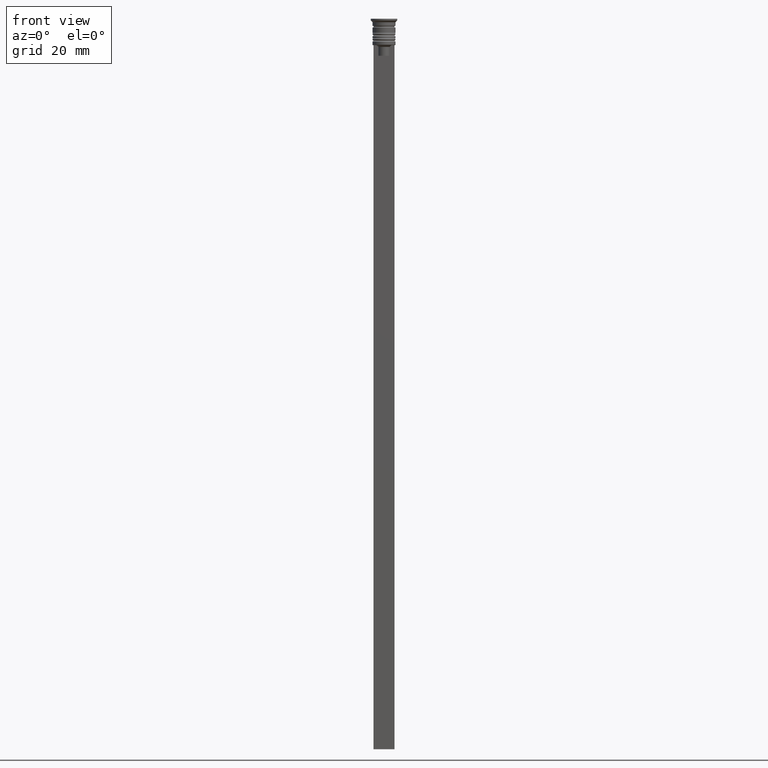
[diagram: clean part render]
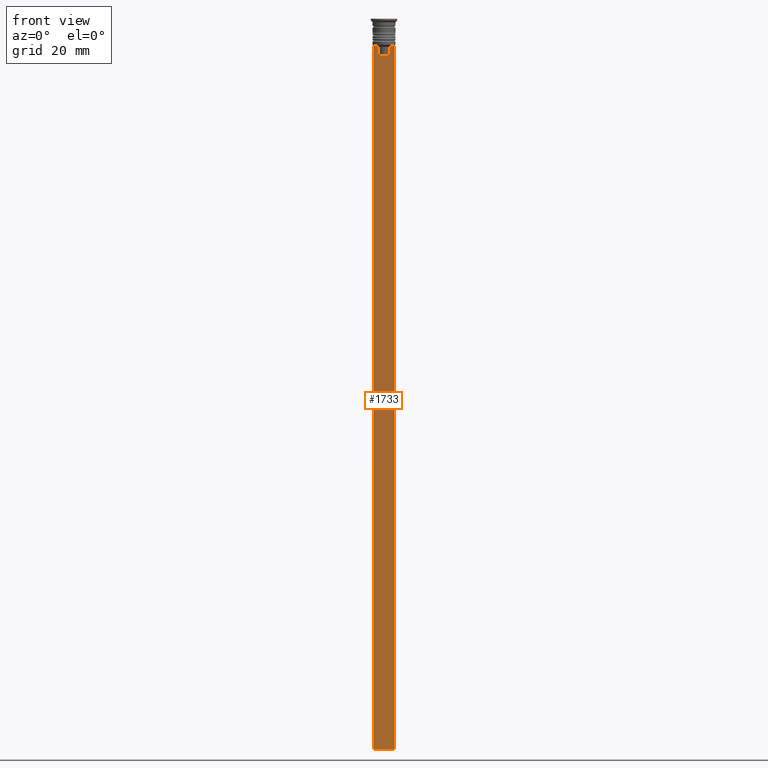
[diagram: same view with one face highlighted and labeled with its STEP entity id]
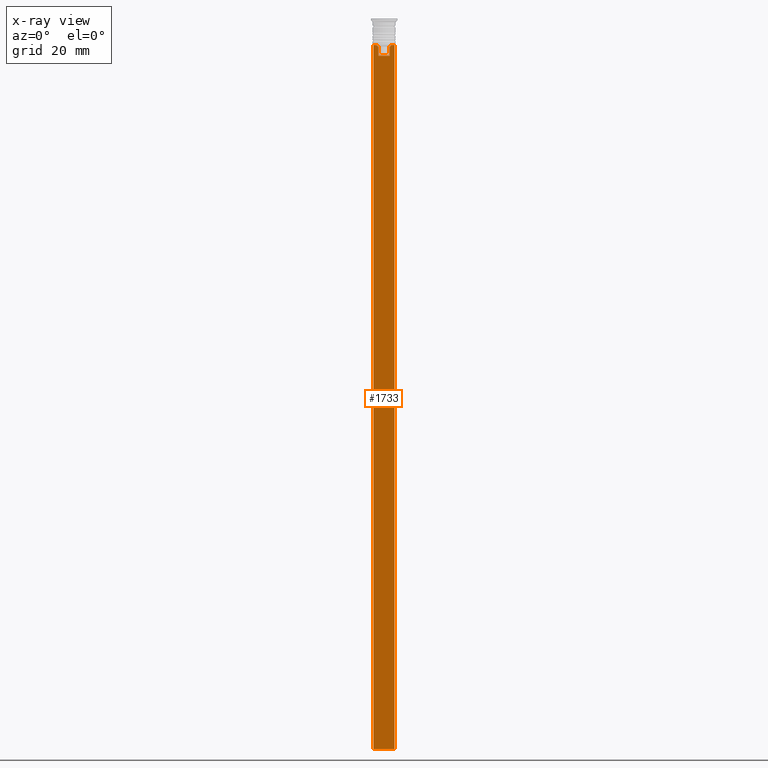
[diagram: x-ray of the same camera — body ghosted, the highlighted face saturated]
A machine part, front view. The second image highlights one B-rep face of the part: STEP entity #1733.
The next image is the same camera in x-ray: the body ghosted, the highlighted face saturated — about 0% of this face is hidden behind the body in this view.
In plain terms, the highlighted planar face has unit normal (0, -1, -0).
Its self-contained STEP definition (entity closure, byte-faithful):
#59 = CARTESIAN_POINT ( 'NONE',  ( 2.999999999999995559, -0.3500000000000000333, -7.500000000000000000 ) ) ;
#62 = ORIENTED_EDGE ( 'NONE', *, *, #915, .F. ) ;
#69 = CARTESIAN_POINT ( 'NONE',  ( -1.612451549659713601, -0.3500000000000000333, -8.000000000000000000 ) ) ;
#85 = ORIENTED_EDGE ( 'NONE', *, *, #1875, .F. ) ;
#107 = EDGE_LOOP ( 'NONE', ( #147, #391, #1537, #1511, #1896, #85, #290, #62, #1756, #237 ) ) ;
#138 = B_SPLINE_CURVE_WITH_KNOTS ( 'NONE', 3,
 ( #1409, #1236, #1068, #69 ),
 .UNSPECIFIED., .F., .F.,
 ( 4, 4 ),
 ( 0.003684653461239337929, 0.004398058763641257696 ),
 .UNSPECIFIED. ) ;
#144 = FACE_OUTER_BOUND ( 'NONE', #107, .T. ) ;
#147 = ORIENTED_EDGE ( 'NONE', *, *, #1019, .F. ) ;
#169 = EDGE_CURVE ( 'NONE', #172, #1552, #1867, .T. ) ;
#172 = VERTEX_POINT ( 'NONE', #175 ) ;
#174 = LINE ( 'NONE', #1366, #1253 ) ;
#175 = CARTESIAN_POINT ( 'NONE',  ( -1.612451549659713601, -0.3500000000000000333, -10.49999999999999822 ) ) ;
#227 = AXIS2_PLACEMENT_3D ( 'NONE', #1006, #642, #1325 ) ;
#237 = ORIENTED_EDGE ( 'NONE', *, *, #798, .F. ) ;
#263 = CARTESIAN_POINT ( 'NONE',  ( 2.121320343559647270, -0.3500000000000000333, -7.500000000000000000 ) ) ;
#290 = ORIENTED_EDGE ( 'NONE', *, *, #1164, .F. ) ;
#341 = VERTEX_POINT ( 'NONE', #1681 ) ;
#358 = DIRECTION ( 'NONE',  ( 0.000000000000000000, 0.000000000000000000, -1.000000000000000000 ) ) ;
#391 = ORIENTED_EDGE ( 'NONE', *, *, #1368, .F. ) ;
#419 = CARTESIAN_POINT ( 'NONE',  ( 1.782523989086206795, -0.3500000000000000333, -7.833797837268088315 ) ) ;
#423 = VECTOR ( 'NONE', #358, 1000.000000000000000 ) ;
#512 = LINE ( 'NONE', #1539, #1065 ) ;
#552 = DIRECTION ( 'NONE',  ( 0.000000000000000000, 0.000000000000000000, -1.000000000000000000 ) ) ;
#559 = LINE ( 'NONE', #567, #1885 ) ;
#567 = CARTESIAN_POINT ( 'NONE',  ( -3.000000000000004441, -0.3500000000000000333, -1.459304675784417915 ) ) ;
#587 = EDGE_CURVE ( 'NONE', #1482, #1697, #512, .T. ) ;
#605 = VECTOR ( 'NONE', #1066, 1000.000000000000000 ) ;
#642 = DIRECTION ( 'NONE',  ( 0.000000000000000000, -1.000000000000000000, -0.000000000000000000 ) ) ;
#647 = VECTOR ( 'NONE', #1559, 1000.000000000000000 ) ;
#657 = VERTEX_POINT ( 'NONE', #734 ) ;
#672 = DIRECTION ( 'NONE',  ( -0.000000000000000000, -0.000000000000000000, 1.000000000000000000 ) ) ;
#734 = CARTESIAN_POINT ( 'NONE',  ( 2.121320343559647270, -0.3500000000000000333, -7.500000000000000000 ) ) ;
#798 = EDGE_CURVE ( 'NONE', #1424, #172, #1036, .T. ) ;
#867 = DIRECTION ( 'NONE',  ( 1.000000000000000000, 0.000000000000000000, 0.000000000000000000 ) ) ;
#881 = CARTESIAN_POINT ( 'NONE',  ( 2.999999999999995559, -0.3500000000000000333, -207.5000000000000284 ) ) ;
#895 = B_SPLINE_CURVE_WITH_KNOTS ( 'NONE', 3,
 ( #975, #419, #1280, #263 ),
 .UNSPECIFIED., .F., .F.,
 ( 4, 4 ),
 ( 0.008600796474521228696, 0.009317962624906526645 ),
 .UNSPECIFIED. ) ;
#915 = EDGE_CURVE ( 'NONE', #1552, #341, #1484, .T. ) ;
#975 = CARTESIAN_POINT ( 'NONE',  ( 1.612451549659713601, -0.3500000000000000333, -8.000000000000000000 ) ) ;
#984 = PLANE ( 'NONE',  #227 ) ;
#1003 = VECTOR ( 'NONE', #672, 1000.000000000000000 ) ;
#1006 = CARTESIAN_POINT ( 'NONE',  ( 2.999999999999995559, -0.3500000000000000333, -1.459304675784417915 ) ) ;
#1019 = EDGE_CURVE ( 'NONE', #1226, #1424, #138, .T. ) ;
#1036 = LINE ( 'NONE', #1204, #423 ) ;
#1057 = CARTESIAN_POINT ( 'NONE',  ( -1.612451549659713601, -0.3500000000000000333, -8.000000000000000000 ) ) ;
#1065 = VECTOR ( 'NONE', #1623, 1000.000000000000000 ) ;
#1066 = DIRECTION ( 'NONE',  ( 1.000000000000000000, 0.000000000000000000, 0.000000000000000000 ) ) ;
#1068 = CARTESIAN_POINT ( 'NONE',  ( -1.782527878033862478, -0.3500000000000000333, -7.833794036819864637 ) ) ;
#1164 = EDGE_CURVE ( 'NONE', #341, #657, #895, .T. ) ;
#1204 = CARTESIAN_POINT ( 'NONE',  ( -1.612451549659713601, -0.3500000000000000333, 0.000000000000000000 ) ) ;
#1226 = VERTEX_POINT ( 'NONE', #2121 ) ;
#1228 = VERTEX_POINT ( 'NONE', #2135 ) ;
#1236 = CARTESIAN_POINT ( 'NONE',  ( -1.952043732028444500, -0.3500000000000000333, -7.667018567316270961 ) ) ;
#1253 = VECTOR ( 'NONE', #1713, 1000.000000000000000 ) ;
#1280 = CARTESIAN_POINT ( 'NONE',  ( 1.952040775369266346, -0.3500000000000000333, -7.667021484535463394 ) ) ;
#1325 = DIRECTION ( 'NONE',  ( 0.000000000000000000, 0.000000000000000000, -1.000000000000000000 ) ) ;
#1344 = CARTESIAN_POINT ( 'NONE',  ( -3.000000000000004441, -0.3500000000000000333, -207.5000000000000284 ) ) ;
#1366 = CARTESIAN_POINT ( 'NONE',  ( 2.999999999999995559, -0.3500000000000000333, -1.459304675784417915 ) ) ;
#1368 = EDGE_CURVE ( 'NONE', #1228, #1226, #1727, .T. ) ;
#1402 = EDGE_CURVE ( 'NONE', #1228, #1697, #559, .T. ) ;
#1409 = CARTESIAN_POINT ( 'NONE',  ( -2.121320343559647270, -0.3500000000000000333, -7.500000000000000000 ) ) ;
#1424 = VERTEX_POINT ( 'NONE', #1057 ) ;
#1426 = CARTESIAN_POINT ( 'NONE',  ( 1.612451549659713601, -0.3500000000000000333, -10.49999999999999822 ) ) ;
#1454 = VERTEX_POINT ( 'NONE', #1585 ) ;
#1482 = VERTEX_POINT ( 'NONE', #881 ) ;
#1484 = LINE ( 'NONE', #1668, #1003 ) ;
#1511 = ORIENTED_EDGE ( 'NONE', *, *, #587, .F. ) ;
#1526 = CARTESIAN_POINT ( 'NONE',  ( 0.000000000000000000, -0.3500000000000000333, -10.49999999999999822 ) ) ;
#1537 = ORIENTED_EDGE ( 'NONE', *, *, #1402, .T. ) ;
#1539 = CARTESIAN_POINT ( 'NONE',  ( 2.999999999999995559, -0.3500000000000000333, -207.5000000000000284 ) ) ;
#1552 = VERTEX_POINT ( 'NONE', #1426 ) ;
#1559 = DIRECTION ( 'NONE',  ( 1.000000000000000000, 0.000000000000000000, 0.000000000000000000 ) ) ;
#1585 = CARTESIAN_POINT ( 'NONE',  ( 2.999999999999995559, -0.3500000000000000333, -7.500000000000000000 ) ) ;
#1602 = LINE ( 'NONE', #1692, #647 ) ;
#1623 = DIRECTION ( 'NONE',  ( -1.000000000000000000, 0.000000000000000000, 0.000000000000000000 ) ) ;
#1668 = CARTESIAN_POINT ( 'NONE',  ( 1.612451549659713601, -0.3500000000000000333, 0.000000000000000000 ) ) ;
#1681 = CARTESIAN_POINT ( 'NONE',  ( 1.612451549659713601, -0.3500000000000000333, -8.000000000000000000 ) ) ;
#1692 = CARTESIAN_POINT ( 'NONE',  ( 2.999999999999995559, -0.3500000000000000333, -7.500000000000000000 ) ) ;
#1697 = VERTEX_POINT ( 'NONE', #1344 ) ;
#1713 = DIRECTION ( 'NONE',  ( 0.000000000000000000, 0.000000000000000000, -1.000000000000000000 ) ) ;
#1727 = LINE ( 'NONE', #59, #605 ) ;
#1733 = ADVANCED_FACE ( 'NONE', ( #144 ), #984, .T. ) ;
#1756 = ORIENTED_EDGE ( 'NONE', *, *, #169, .F. ) ;
#1867 = LINE ( 'NONE', #1526, #2083 ) ;
#1875 = EDGE_CURVE ( 'NONE', #657, #1454, #1602, .T. ) ;
#1885 = VECTOR ( 'NONE', #552, 1000.000000000000000 ) ;
#1896 = ORIENTED_EDGE ( 'NONE', *, *, #2100, .F. ) ;
#2083 = VECTOR ( 'NONE', #867, 1000.000000000000000 ) ;
#2100 = EDGE_CURVE ( 'NONE', #1454, #1482, #174, .T. ) ;
#2121 = CARTESIAN_POINT ( 'NONE',  ( -2.121320343559647270, -0.3500000000000000333, -7.500000000000000000 ) ) ;
#2135 = CARTESIAN_POINT ( 'NONE',  ( -3.000000000000004441, -0.3500000000000000333, -7.500000000000000000 ) ) ;